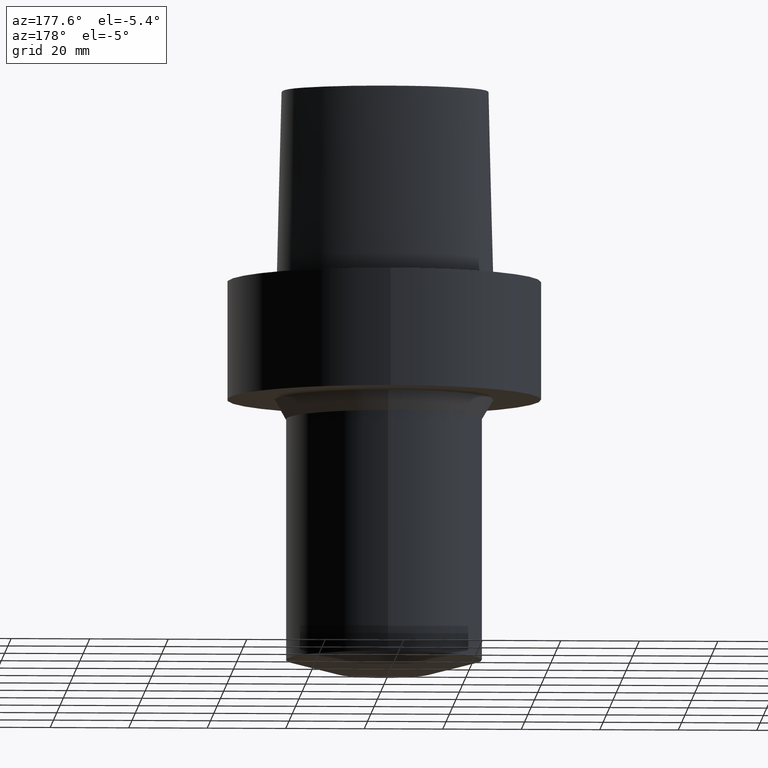
[diagram: clean part render]
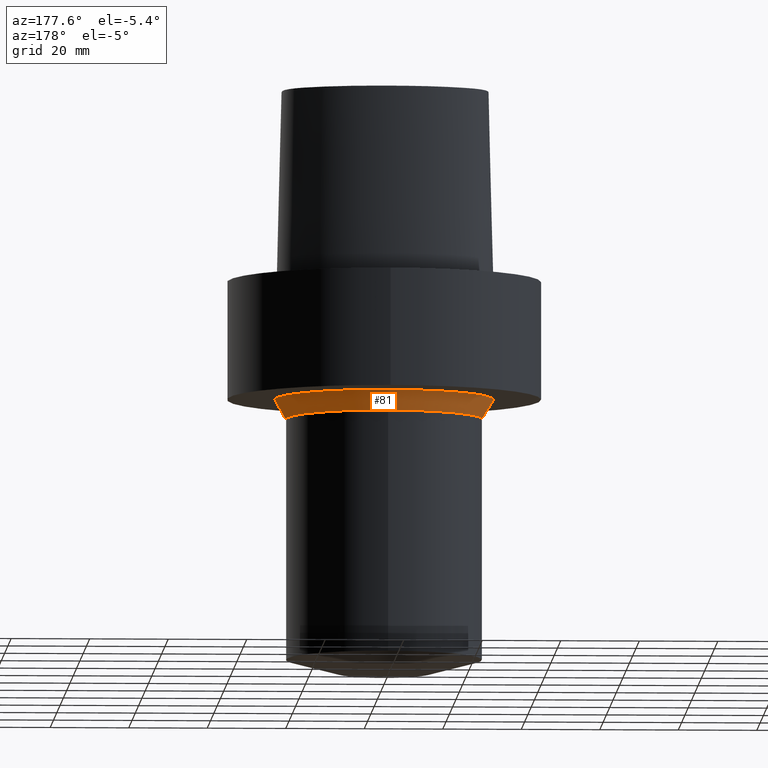
[diagram: same view with one face highlighted and labeled with its STEP entity id]
A machine part, auxiliary view. The second image highlights one B-rep face of the part: STEP entity #81.
In plain terms, the highlighted conical surface has half-angle 30 deg.
Its self-contained STEP definition (entity closure, byte-faithful):
#81=ADVANCED_FACE('',(#100,#101),#102,.T.);
#100=FACE_BOUND('',#507,.T.);
#101=FACE_BOUND('',#508,.T.);
#102=CONICAL_SURFACE('',#509,26.443375674709,0.523598775769612);
#507=EDGE_LOOP('',(#543));
#508=EDGE_LOOP('',(#544));
#509=AXIS2_PLACEMENT_3D('',#545,#546,#547);
#543=ORIENTED_EDGE('',*,*,#565,.F.);
#544=ORIENTED_EDGE('',*,*,#564,.T.);
#545=CARTESIAN_POINT('',(1.99005104873789E-015,3.98010209747578E-015,-32.500000002016));
#546=DIRECTION('',(-6.12323399573677E-017,-1.22464679914735E-016,1.0));
#547=DIRECTION('',(-1.23259516440783E-032,1.0,1.22464679914735E-016));
#564=EDGE_CURVE('',#578,#578,#579,.T.);
#565=EDGE_CURVE('',#580,#580,#581,.T.);
#578=VERTEX_POINT('',#741);
#579=CIRCLE('',#742,25.0);
#580=VERTEX_POINT('',#743);
#581=CIRCLE('',#744,27.886751349418);
#741=CARTESIAN_POINT('',(2.14313189875475E-015,25.0,-35.0000000040319));
#742=AXIS2_PLACEMENT_3D('',#756,#757,#758);
#743=CARTESIAN_POINT('',(1.83697019872103E-015,27.886751349418,-30.0));
#744=AXIS2_PLACEMENT_3D('',#759,#760,#761);
#756=CARTESIAN_POINT('',(2.14313189875475E-015,4.2862637975095E-015,-35.0000000040319));
#757=DIRECTION('',(-6.12323399573677E-017,-1.22464679914735E-016,1.0));
#758=DIRECTION('',(-1.23259516440783E-032,1.0,1.22464679914735E-016));
#759=CARTESIAN_POINT('',(1.83697019872103E-015,3.67394039744206E-015,-30.0));
#760=DIRECTION('',(-6.12323399573676E-017,-1.22464679914735E-016,1.0));
#761=DIRECTION('',(-1.23259516440783E-032,1.0,1.22464679914735E-016));